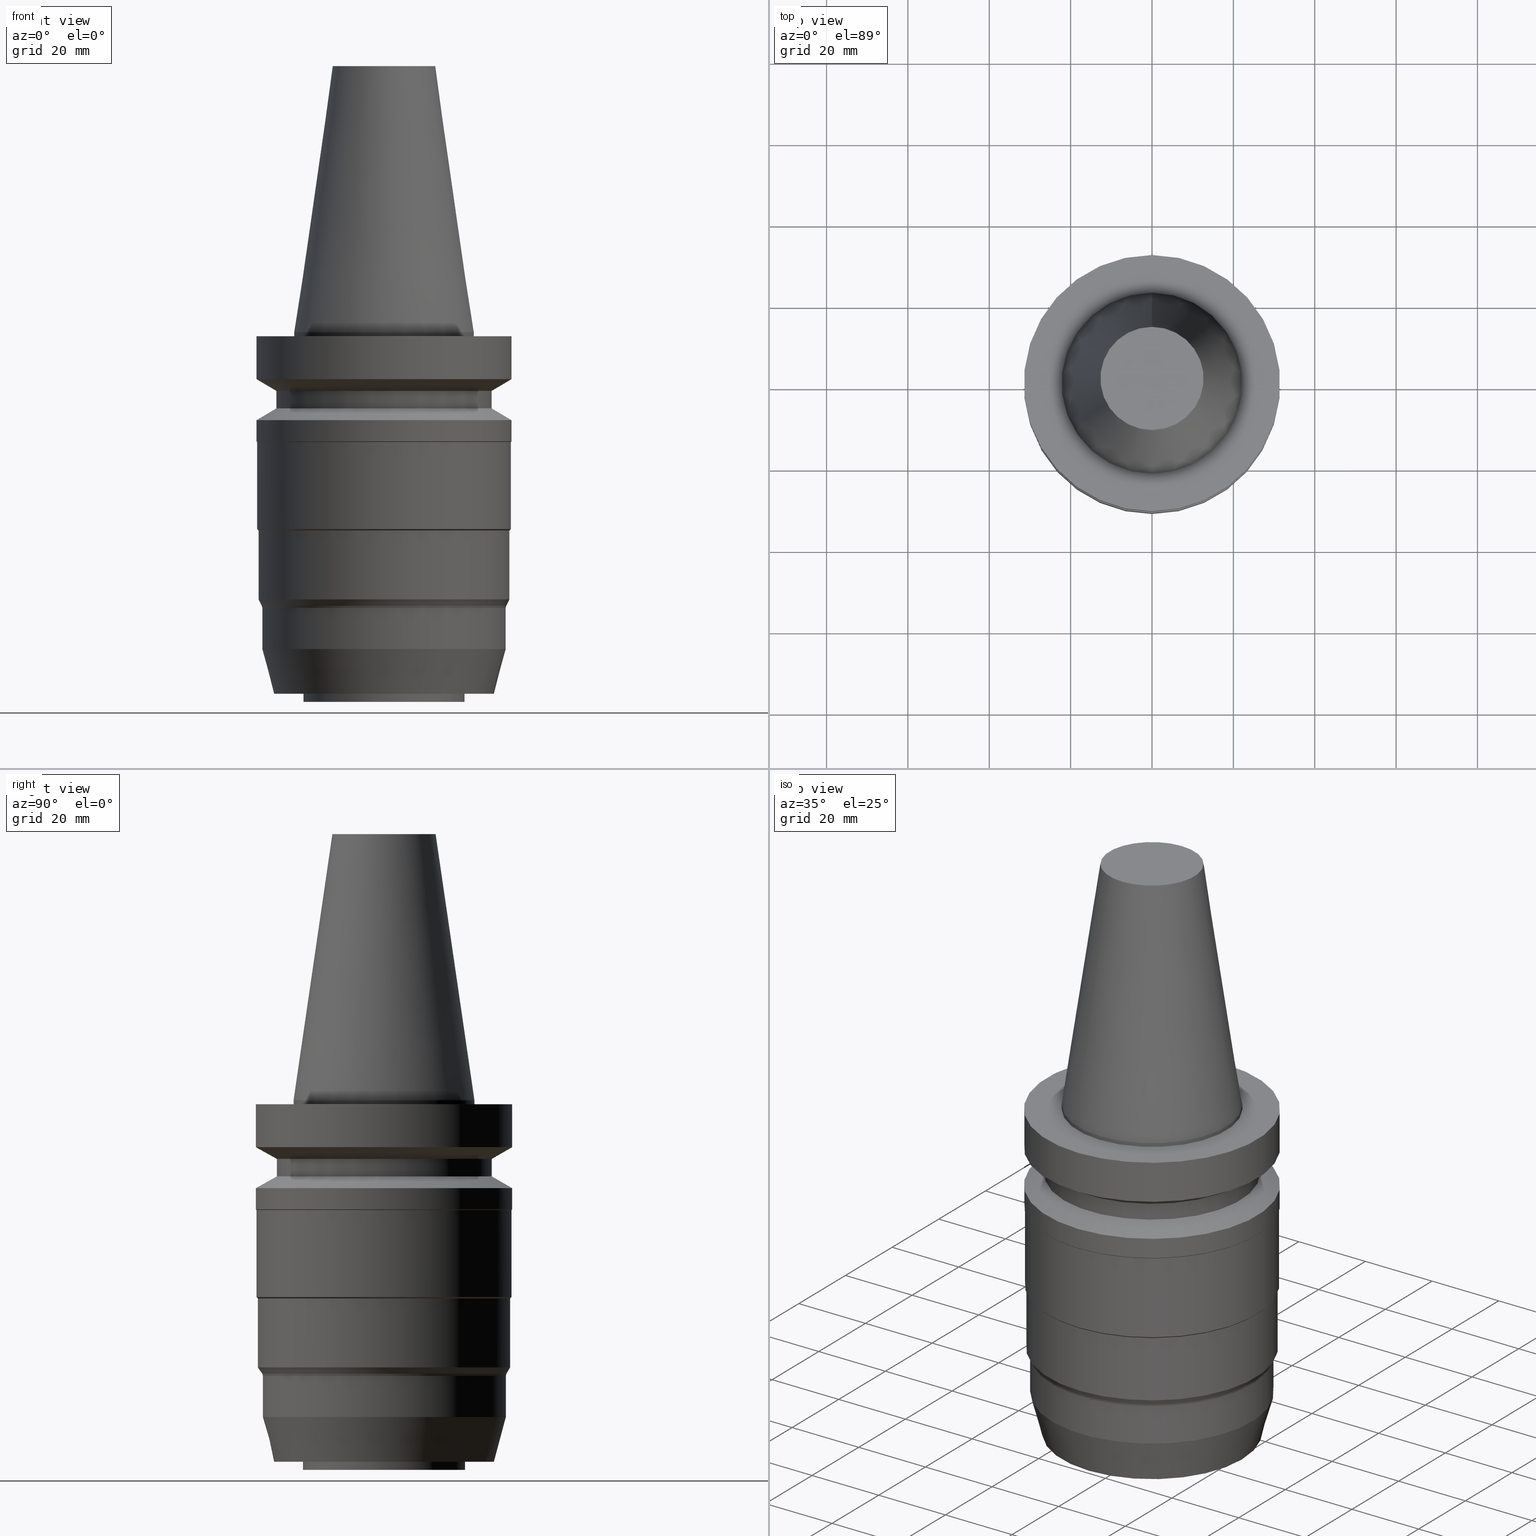
[diagram: canonical four-view strip — front | top / right | iso, engineering-drawing reading convention]
A machine part, canonical four-view strip (front | top / right | iso — engineering-drawing reading convention). The complete STEP part file that produces these views, byte-faithful:
ISO-10303-21;
HEADER;
FILE_DESCRIPTION((''),'1');
FILE_NAME('V:/90_\X2\53D65F9730C730FC30BF\X0\/00_\X2\6DE18DEF30C730FC30BF\X0\/ALL/BBT-BKUS\X2\FF76FF80FF9BFF78FF9E752852A05DE556F3\X0\201801/BBT40-MEGADS-A/BBT40-MEGA1.000DS-3.5A.stp','2018-02-07T02:59:03',(''),(''),'Spatial Interop R21 SP3','Kubotek KeyCreator 2011 V10.0.2 (22737)',' ');
FILE_SCHEMA(('automotive_design'));
ENDSEC;
DATA;
#1=MECHANICAL_DESIGN_GEOMETRIC_PRESENTATION_REPRESENTATION(' ',(#10,#11,#12,#13,#14,#15,#16,#17,#18,#19,#20,#21,#22,#23,#24,#25,#26,#27,#28,#29,#30,#31,#32,#33,#34,#35,#36,#37,#38,#39,#40,#41,#42,#43,#44,#45,#46,#47,#48,#49),#6);
#2=PRODUCT_DEFINITION_CONTEXT('',#50,'design');
#3=APPLICATION_PROTOCOL_DEFINITION('INTERNATIONAL STANDARD','automotive_design',1994,#50);
#4=PRODUCT_CATEGORY_RELATIONSHIP('NONE','NONE',#51,#52);
#5=SHAPE_DEFINITION_REPRESENTATION(#53,#54);
#6= (GEOMETRIC_REPRESENTATION_CONTEXT(3)GLOBAL_UNCERTAINTY_ASSIGNED_CONTEXT((#57))GLOBAL_UNIT_ASSIGNED_CONTEXT((#59,#60,#61))REPRESENTATION_CONTEXT('NONE','WORKSPACE'));
#10=STYLED_ITEM('',(#63),#64);
#11=STYLED_ITEM('',(#65,#66),#67);
#12=STYLED_ITEM('',(#68),#69);
#13=STYLED_ITEM('',(#70),#71);
#14=STYLED_ITEM('',(#72),#73);
#15=STYLED_ITEM('',(#74),#75);
#16=STYLED_ITEM('',(#76),#77);
#17=STYLED_ITEM('',(#78,#79),#80);
#18=STYLED_ITEM('',(#81),#82);
#19=STYLED_ITEM('',(#83),#84);
#20=STYLED_ITEM('',(#85),#86);
#21=STYLED_ITEM('',(#87,#88),#89);
#22=STYLED_ITEM('',(#90,#91),#92);
#23=STYLED_ITEM('',(#93,#94),#95);
#24=STYLED_ITEM('',(#96,#97),#98);
#25=STYLED_ITEM('',(#99,#100),#101);
#26=STYLED_ITEM('',(#102,#103),#104);
#27=STYLED_ITEM('',(#105,#106),#107);
#28=STYLED_ITEM('',(#108,#109),#110);
#29=STYLED_ITEM('',(#111,#112),#113);
#30=STYLED_ITEM('',(#114),#115);
#31=STYLED_ITEM('',(#116),#117);
#32=STYLED_ITEM('',(#118,#119),#120);
#33=STYLED_ITEM('',(#121),#122);
#34=STYLED_ITEM('',(#123,#124),#125);
#35=STYLED_ITEM('',(#126),#127);
#36=STYLED_ITEM('',(#128),#129);
#37=STYLED_ITEM('',(#130),#131);
#38=STYLED_ITEM('',(#132,#133),#134);
#39=STYLED_ITEM('',(#135,#136),#137);
#40=STYLED_ITEM('',(#138,#139),#140);
#41=STYLED_ITEM('',(#141,#142),#143);
#42=STYLED_ITEM('',(#144),#145);
#43=STYLED_ITEM('',(#146,#147),#148);
#44=STYLED_ITEM('',(#149),#150);
#45=STYLED_ITEM('',(#151,#152),#153);
#46=STYLED_ITEM('',(#154),#155);
#47=STYLED_ITEM('',(#156,#157),#158);
#48=STYLED_ITEM('',(#159,#160),#161);
#49=STYLED_ITEM('',(#162),#163);
#50=APPLICATION_CONTEXT(' ');
#51=PRODUCT_CATEGORY('part','NONE');
#52=PRODUCT_RELATED_PRODUCT_CATEGORY('detail',' ',(#164));
#53=PRODUCT_DEFINITION_SHAPE('NONE','NONE',#165);
#54=ADVANCED_BREP_SHAPE_REPRESENTATION('Unnamed[1]',(#134,#166),#6);
#57=UNCERTAINTY_MEASURE_WITH_UNIT(LENGTH_MEASURE(1.0E-006),#59,'','');
#59= (CONVERSION_BASED_UNIT('MILLIMETRE',#169)LENGTH_UNIT()NAMED_UNIT(#172));
#60= (NAMED_UNIT(#174)PLANE_ANGLE_UNIT()SI_UNIT($,.RADIAN.));
#61= (NAMED_UNIT(#174)SOLID_ANGLE_UNIT()SI_UNIT($,.STERADIAN.));
#63=PRESENTATION_STYLE_ASSIGNMENT((#180));
#64=EDGE_CURVE('Unnamed[1]',#181,#181,#182,.T.);
#65=PRESENTATION_STYLE_ASSIGNMENT((#183));
#66=PRESENTATION_STYLE_ASSIGNMENT((#184));
#67=ADVANCED_FACE('Unnamed[1]',(#185,#186),#187,.T.);
#68=PRESENTATION_STYLE_ASSIGNMENT((#188));
#69=EDGE_CURVE('Unnamed[1]',#189,#189,#190,.T.);
#70=PRESENTATION_STYLE_ASSIGNMENT((#191));
#71=EDGE_CURVE('Unnamed[1]',#192,#192,#193,.T.);
#72=PRESENTATION_STYLE_ASSIGNMENT((#194));
#73=EDGE_CURVE('Unnamed[1]',#195,#195,#196,.T.);
#74=PRESENTATION_STYLE_ASSIGNMENT((#197));
#75=EDGE_CURVE('Unnamed[1]',#198,#198,#199,.T.);
#76=PRESENTATION_STYLE_ASSIGNMENT((#200));
#77=EDGE_CURVE('Unnamed[1]',#201,#201,#202,.T.);
#78=PRESENTATION_STYLE_ASSIGNMENT((#203));
#79=PRESENTATION_STYLE_ASSIGNMENT((#204));
#80=ADVANCED_FACE('Unnamed[1]',(#205,#206),#207,.T.);
#81=PRESENTATION_STYLE_ASSIGNMENT((#208));
#82=EDGE_CURVE('Unnamed[1]',#209,#209,#210,.T.);
#83=PRESENTATION_STYLE_ASSIGNMENT((#211));
#84=EDGE_CURVE('Unnamed[1]',#212,#212,#213,.T.);
#85=PRESENTATION_STYLE_ASSIGNMENT((#214));
#86=EDGE_CURVE('Unnamed[1]',#215,#215,#216,.T.);
#87=PRESENTATION_STYLE_ASSIGNMENT((#217));
#88=PRESENTATION_STYLE_ASSIGNMENT((#218));
#89=ADVANCED_FACE('Unnamed[1]',(#219,#220),#221,.T.);
#90=PRESENTATION_STYLE_ASSIGNMENT((#222));
#91=PRESENTATION_STYLE_ASSIGNMENT((#223));
#92=ADVANCED_FACE('Unnamed[1]',(#224),#225,.T.);
#93=PRESENTATION_STYLE_ASSIGNMENT((#226));
#94=PRESENTATION_STYLE_ASSIGNMENT((#227));
#95=ADVANCED_FACE('Unnamed[1]',(#228,#229),#230,.T.);
#96=PRESENTATION_STYLE_ASSIGNMENT((#231));
#97=PRESENTATION_STYLE_ASSIGNMENT((#232));
#98=ADVANCED_FACE('Unnamed[1]',(#233,#234),#235,.T.);
#99=PRESENTATION_STYLE_ASSIGNMENT((#236));
#100=PRESENTATION_STYLE_ASSIGNMENT((#237));
#101=ADVANCED_FACE('Unnamed[1]',(#238,#239),#240,.T.);
#102=PRESENTATION_STYLE_ASSIGNMENT((#241));
#103=PRESENTATION_STYLE_ASSIGNMENT((#242));
#104=ADVANCED_FACE('Unnamed[1]',(#243,#244),#245,.T.);
#105=PRESENTATION_STYLE_ASSIGNMENT((#246));
#106=PRESENTATION_STYLE_ASSIGNMENT((#247));
#107=ADVANCED_FACE('Unnamed[1]',(#248,#249),#250,.T.);
#108=PRESENTATION_STYLE_ASSIGNMENT((#251));
#109=PRESENTATION_STYLE_ASSIGNMENT((#252));
#110=ADVANCED_FACE('Unnamed[1]',(#253,#254),#255,.T.);
#111=PRESENTATION_STYLE_ASSIGNMENT((#256));
#112=PRESENTATION_STYLE_ASSIGNMENT((#257));
#113=ADVANCED_FACE('Unnamed[1]',(#258),#259,.T.);
#114=PRESENTATION_STYLE_ASSIGNMENT((#260));
#115=EDGE_CURVE('Unnamed[1]',#261,#261,#262,.T.);
#116=PRESENTATION_STYLE_ASSIGNMENT((#263));
#117=EDGE_CURVE('Unnamed[1]',#264,#264,#265,.T.);
#118=PRESENTATION_STYLE_ASSIGNMENT((#266));
#119=PRESENTATION_STYLE_ASSIGNMENT((#267));
#120=ADVANCED_FACE('Unnamed[1]',(#268,#269),#270,.T.);
#121=PRESENTATION_STYLE_ASSIGNMENT((#271));
#122=EDGE_CURVE('Unnamed[1]',#272,#272,#273,.T.);
#123=PRESENTATION_STYLE_ASSIGNMENT((#274));
#124=PRESENTATION_STYLE_ASSIGNMENT((#275));
#125=ADVANCED_FACE('Unnamed[1]',(#276,#277),#278,.T.);
#126=PRESENTATION_STYLE_ASSIGNMENT((#279));
#127=EDGE_CURVE('Unnamed[1]',#280,#280,#281,.T.);
#128=PRESENTATION_STYLE_ASSIGNMENT((#282));
#129=EDGE_CURVE('Unnamed[1]',#283,#283,#284,.T.);
#130=PRESENTATION_STYLE_ASSIGNMENT((#285));
#131=EDGE_CURVE('Unnamed[1]',#286,#286,#287,.T.);
#132=PRESENTATION_STYLE_ASSIGNMENT((#288));
#133=PRESENTATION_STYLE_ASSIGNMENT((#289));
#134=MANIFOLD_SOLID_BREP('Unnamed[1]',#290);
#135=PRESENTATION_STYLE_ASSIGNMENT((#291));
#136=PRESENTATION_STYLE_ASSIGNMENT((#292));
#137=ADVANCED_FACE('Unnamed[1]',(#293,#294),#295,.T.);
#138=PRESENTATION_STYLE_ASSIGNMENT((#296));
#139=PRESENTATION_STYLE_ASSIGNMENT((#297));
#140=ADVANCED_FACE('Unnamed[1]',(#298,#299),#300,.T.);
#141=PRESENTATION_STYLE_ASSIGNMENT((#301));
#142=PRESENTATION_STYLE_ASSIGNMENT((#302));
#143=ADVANCED_FACE('Unnamed[1]',(#303,#304),#305,.T.);
#144=PRESENTATION_STYLE_ASSIGNMENT((#306));
#145=EDGE_CURVE('Unnamed[1]',#307,#307,#308,.T.);
#146=PRESENTATION_STYLE_ASSIGNMENT((#309));
#147=PRESENTATION_STYLE_ASSIGNMENT((#310));
#148=ADVANCED_FACE('Unnamed[1]',(#311,#312),#313,.T.);
#149=PRESENTATION_STYLE_ASSIGNMENT((#314));
#150=EDGE_CURVE('Unnamed[1]',#315,#315,#316,.T.);
#151=PRESENTATION_STYLE_ASSIGNMENT((#317));
#152=PRESENTATION_STYLE_ASSIGNMENT((#318));
#153=ADVANCED_FACE('Unnamed[1]',(#319,#320),#321,.T.);
#154=PRESENTATION_STYLE_ASSIGNMENT((#322));
#155=EDGE_CURVE('Unnamed[1]',#323,#323,#324,.T.);
#156=PRESENTATION_STYLE_ASSIGNMENT((#325));
#157=PRESENTATION_STYLE_ASSIGNMENT((#326));
#158=ADVANCED_FACE('Unnamed[1]',(#327,#328),#329,.T.);
#159=PRESENTATION_STYLE_ASSIGNMENT((#330));
#160=PRESENTATION_STYLE_ASSIGNMENT((#331));
#161=ADVANCED_FACE('Unnamed[1]',(#332,#333),#334,.T.);
#162=PRESENTATION_STYLE_ASSIGNMENT((#335));
#163=EDGE_CURVE('Unnamed[1]',#336,#336,#337,.T.);
#164=PRODUCT('Unnamed[1]','Unnamed[1]','PART-Unnamed[1]-DESC',(#338));
#165=PRODUCT_DEFINITION('NONE','NONE',#339,#2);
#166=AXIS2_PLACEMENT_3D('',#340,#341,#342);
#169=LENGTH_MEASURE_WITH_UNIT(LENGTH_MEASURE(1.0),#343);
#172=DIMENSIONAL_EXPONENTS(1.0,0.0,0.0,0.0,0.0,0.0,0.0);
#174=DIMENSIONAL_EXPONENTS(0.0,0.0,0.0,0.0,0.0,0.0,0.0);
#180=CURVE_STYLE('',#344,POSITIVE_LENGTH_MEASURE(1000.0),#345);
#181=VERTEX_POINT('',#346);
#182=CIRCLE('',#347,19.9200000000013);
#183=SURFACE_STYLE_USAGE(.BOTH.,#348);
#184=CURVE_STYLE('',#349,POSITIVE_LENGTH_MEASURE(1000.0),#350);
#185=FACE_BOUND('',#351,.T.);
#186=FACE_BOUND('',#352,.T.);
#187=CYLINDRICAL_SURFACE('',#353,29.9500000000001);
#188=CURVE_STYLE('',#354,POSITIVE_LENGTH_MEASURE(1000.0),#355);
#189=VERTEX_POINT('',#356);
#190=CIRCLE('',#357,12.6875000000001);
#191=CURVE_STYLE('',#358,POSITIVE_LENGTH_MEASURE(1000.0),#359);
#192=VERTEX_POINT('',#360);
#193=CIRCLE('',#361,19.9200000000008);
#194=CURVE_STYLE('',#362,POSITIVE_LENGTH_MEASURE(1000.0),#363);
#195=VERTEX_POINT('',#364);
#196=CIRCLE('',#365,26.5);
#197=CURVE_STYLE('',#366,POSITIVE_LENGTH_MEASURE(1000.0),#367);
#198=VERTEX_POINT('',#368);
#199=CIRCLE('',#369,31.3500000000002);
#200=CURVE_STYLE('',#370,POSITIVE_LENGTH_MEASURE(1000.0),#371);
#201=VERTEX_POINT('',#372);
#202=CIRCLE('',#373,29.9499999999999);
#203=SURFACE_STYLE_USAGE(.BOTH.,#374);
#204=CURVE_STYLE('',#375,POSITIVE_LENGTH_MEASURE(1000.0),#376);
#205=FACE_BOUND('',#377,.T.);
#206=FACE_BOUND('',#378,.T.);
#207=CONICAL_SURFACE('',#379,28.9999999999999,1.04719755119657);
#208=CURVE_STYLE('',#380,POSITIVE_LENGTH_MEASURE(1000.0),#381);
#209=VERTEX_POINT('',#382);
#210=CIRCLE('',#383,31.4999999999996);
#211=CURVE_STYLE('',#384,POSITIVE_LENGTH_MEASURE(1000.0),#385);
#212=VERTEX_POINT('',#386);
#213=CIRCLE('',#387,22.225);
#214=CURVE_STYLE('',#388,POSITIVE_LENGTH_MEASURE(1000.0),#389);
#215=VERTEX_POINT('',#390);
#216=CIRCLE('',#391,31.5000000000005);
#217=SURFACE_STYLE_USAGE(.BOTH.,#392);
#218=CURVE_STYLE('',#393,POSITIVE_LENGTH_MEASURE(1000.0),#394);
#219=FACE_BOUND('',#395,.T.);
#220=FACE_BOUND('',#396,.T.);
#221=CYLINDRICAL_SURFACE('',#397,31.0);
#222=SURFACE_STYLE_USAGE(.BOTH.,#398);
#223=CURVE_STYLE('',#399,POSITIVE_LENGTH_MEASURE(1000.0),#400);
#224=FACE_OUTER_BOUND('',#401,.T.);
#225=PLANE('',#402);
#226=SURFACE_STYLE_USAGE(.BOTH.,#403);
#227=CURVE_STYLE('',#404,POSITIVE_LENGTH_MEASURE(1000.0),#405);
#228=FACE_BOUND('',#406,.T.);
#229=FACE_BOUND('',#407,.T.);
#230=CONICAL_SURFACE('',#408,31.1750000000001,0.785398163406213);
#231=SURFACE_STYLE_USAGE(.BOTH.,#409);
#232=CURVE_STYLE('',#410,POSITIVE_LENGTH_MEASURE(1000.0),#411);
#233=FACE_BOUND('',#412,.T.);
#234=FACE_BOUND('',#413,.T.);
#235=CONICAL_SURFACE('',#414,31.425,0.785398163401581);
#236=SURFACE_STYLE_USAGE(.BOTH.,#415);
#237=CURVE_STYLE('',#416,POSITIVE_LENGTH_MEASURE(1000.0),#417);
#238=FACE_BOUND('',#418,.T.);
#239=FACE_BOUND('',#419,.T.);
#240=CONICAL_SURFACE('',#420,30.0169872981074,0.261799387798462);
#241=SURFACE_STYLE_USAGE(.BOTH.,#421);
#242=CURVE_STYLE('',#422,POSITIVE_LENGTH_MEASURE(1000.0),#423);
#243=FACE_BOUND('',#424,.T.);
#244=FACE_BOUND('',#425,.T.);
#245=CYLINDRICAL_SURFACE('',#426,22.225);
#246=SURFACE_STYLE_USAGE(.BOTH.,#427);
#247=CURVE_STYLE('',#428,POSITIVE_LENGTH_MEASURE(1000.0),#429);
#248=FACE_BOUND('',#430,.T.);
#249=FACE_BOUND('',#431,.T.);
#250=CYLINDRICAL_SURFACE('',#432,26.4999999999997);
#251=SURFACE_STYLE_USAGE(.BOTH.,#433);
#252=CURVE_STYLE('',#434,POSITIVE_LENGTH_MEASURE(1000.0),#435);
#253=FACE_BOUND('',#436,.T.);
#254=FACE_BOUND('',#437,.T.);
#255=CYLINDRICAL_SURFACE('',#438,31.5000000000006);
#256=SURFACE_STYLE_USAGE(.BOTH.,#439);
#257=CURVE_STYLE('',#440,POSITIVE_LENGTH_MEASURE(1000.0),#441);
#258=FACE_OUTER_BOUND('',#442,.T.);
#259=PLANE('',#443);
#260=CURVE_STYLE('',#444,POSITIVE_LENGTH_MEASURE(1000.0),#445);
#261=VERTEX_POINT('',#446);
#262=CIRCLE('',#447,31.5000000000003);
#263=CURVE_STYLE('',#448,POSITIVE_LENGTH_MEASURE(1000.0),#449);
#264=VERTEX_POINT('',#450);
#265=CIRCLE('',#451,26.4999999999994);
#266=SURFACE_STYLE_USAGE(.BOTH.,#452);
#267=CURVE_STYLE('',#453,POSITIVE_LENGTH_MEASURE(1000.0),#454);
#268=FACE_BOUND('',#455,.T.);
#269=FACE_BOUND('',#456,.T.);
#270=CONICAL_SURFACE('',#457,30.5419872981074,0.523598775596923);
#271=CURVE_STYLE('',#458,POSITIVE_LENGTH_MEASURE(1000.0),#459);
#272=VERTEX_POINT('',#460);
#273=CIRCLE('',#461,30.0839745962148);
#274=SURFACE_STYLE_USAGE(.BOTH.,#462);
#275=CURVE_STYLE('',#463,POSITIVE_LENGTH_MEASURE(1000.0),#464);
#276=FACE_BOUND('',#465,.T.);
#277=FACE_BOUND('',#466,.T.);
#278=CYLINDRICAL_SURFACE('',#467,19.9200000000011);
#279=CURVE_STYLE('',#468,POSITIVE_LENGTH_MEASURE(1000.0),#469);
#280=VERTEX_POINT('',#470);
#281=CIRCLE('',#471,31.5000000000008);
#282=CURVE_STYLE('',#472,POSITIVE_LENGTH_MEASURE(1000.0),#473);
#283=VERTEX_POINT('',#474);
#284=CIRCLE('',#475,29.9500000000003);
#285=CURVE_STYLE('',#476,POSITIVE_LENGTH_MEASURE(1000.0),#477);
#286=VERTEX_POINT('',#478);
#287=CIRCLE('',#479,26.9999999999999);
#288=SURFACE_STYLE_USAGE(.BOTH.,#480);
#289=CURVE_STYLE('',#481,POSITIVE_LENGTH_MEASURE(1000.0),#482);
#290=CLOSED_SHELL('',(#92,#140,#104,#161,#153,#80,#107,#148,#110,#98,#143,#95,#89,#120,#101,#67,#137,#158,#125,#113));
#291=SURFACE_STYLE_USAGE(.BOTH.,#483);
#292=CURVE_STYLE('',#484,POSITIVE_LENGTH_MEASURE(1000.0),#485);
#293=FACE_BOUND('',#486,.T.);
#294=FACE_BOUND('',#487,.T.);
#295=CONICAL_SURFACE('',#488,28.4750000000001,0.261799387799165);
#296=SURFACE_STYLE_USAGE(.BOTH.,#489);
#297=CURVE_STYLE('',#490,POSITIVE_LENGTH_MEASURE(1000.0),#491);
#298=FACE_BOUND('',#492,.T.);
#299=FACE_BOUND('',#493,.T.);
#300=CONICAL_SURFACE('',#494,17.4562500000001,0.144812498238936);
#301=SURFACE_STYLE_USAGE(.BOTH.,#495);
#302=CURVE_STYLE('',#496,POSITIVE_LENGTH_MEASURE(1000.0),#497);
#303=FACE_BOUND('',#498,.T.);
#304=FACE_BOUND('',#499,.T.);
#305=CYLINDRICAL_SURFACE('',#500,31.3499999999998);
#306=CURVE_STYLE('',#501,POSITIVE_LENGTH_MEASURE(1000.0),#502);
#307=VERTEX_POINT('',#503);
#308=CIRCLE('',#504,31.0);
#309=SURFACE_STYLE_USAGE(.BOTH.,#505);
#310=CURVE_STYLE('',#506,POSITIVE_LENGTH_MEASURE(1000.0),#507);
#311=FACE_BOUND('',#508,.T.);
#312=FACE_BOUND('',#509,.T.);
#313=CONICAL_SURFACE('',#510,29.0000000000004,1.04719755119651);
#314=CURVE_STYLE('',#511,POSITIVE_LENGTH_MEASURE(1000.0),#512);
#315=VERTEX_POINT('',#513);
#316=CIRCLE('',#514,22.225);
#317=SURFACE_STYLE_USAGE(.BOTH.,#515);
#318=CURVE_STYLE('',#516,POSITIVE_LENGTH_MEASURE(1000.0),#517);
#319=FACE_BOUND('',#518,.T.);
#320=FACE_BOUND('',#519,.T.);
#321=CYLINDRICAL_SURFACE('',#520,31.5);
#322=CURVE_STYLE('',#521,POSITIVE_LENGTH_MEASURE(1000.0),#522);
#323=VERTEX_POINT('',#523);
#324=CIRCLE('',#524,31.0);
#325=SURFACE_STYLE_USAGE(.BOTH.,#525);
#326=CURVE_STYLE('',#526,POSITIVE_LENGTH_MEASURE(1000.0),#527);
#327=FACE_BOUND('',#528,.T.);
#328=FACE_OUTER_BOUND('',#529,.T.);
#329=PLANE('',#530);
#330=SURFACE_STYLE_USAGE(.BOTH.,#531);
#331=CURVE_STYLE('',#532,POSITIVE_LENGTH_MEASURE(1000.0),#533);
#332=FACE_OUTER_BOUND('',#534,.T.);
#333=FACE_BOUND('',#535,.T.);
#334=PLANE('',#536);
#335=CURVE_STYLE('',#537,POSITIVE_LENGTH_MEASURE(1000.0),#538);
#336=VERTEX_POINT('',#539);
#337=CIRCLE('',#540,31.3499999999995);
#338=PRODUCT_CONTEXT('',#50,'mechanical');
#339=PRODUCT_DEFINITION_FORMATION_WITH_SPECIFIED_SOURCE(' ','NONE',#164,.NOT_KNOWN.);
#340=CARTESIAN_POINT('',(0.0,0.0,0.0));
#341=DIRECTION('',(0.0,0.0,1.0));
#342=DIRECTION('',(1.0,0.0,0.0));
#343= (NAMED_UNIT(#172)LENGTH_UNIT()SI_UNIT(.MILLI.,.METRE.));
#344=DRAUGHTING_PRE_DEFINED_CURVE_FONT('continuous');
#345=COLOUR_RGB('',0.0,1.0,0.0);
#346=CARTESIAN_POINT('',(5.44355502220996E-015,19.9200000000014,-88.8999999999995));
#347=AXIS2_PLACEMENT_3D('',#542,#543,#544);
#348=SURFACE_SIDE_STYLE('',(#545));
#349=DRAUGHTING_PRE_DEFINED_CURVE_FONT('continuous');
#350=COLOUR_RGB('',0.0,1.0,0.0);
#351=EDGE_LOOP('',(#546));
#352=EDGE_LOOP('',(#547));
#353=AXIS2_PLACEMENT_3D('',#548,#549,#550);
#354=DRAUGHTING_PRE_DEFINED_CURVE_FONT('continuous');
#355=COLOUR_RGB('',0.0,1.0,0.0);
#356=CARTESIAN_POINT('',(-4.00459503321185E-015,12.6875000000002,65.4000000000001));
#357=AXIS2_PLACEMENT_3D('',#551,#552,#553);
#358=DRAUGHTING_PRE_DEFINED_CURVE_FONT('continuous');
#359=COLOUR_RGB('',0.0,1.0,0.0);
#360=CARTESIAN_POINT('',(5.56601970212473E-015,19.9200000000008,-90.9000000000002));
#361=AXIS2_PLACEMENT_3D('',#554,#555,#556);
#362=DRAUGHTING_PRE_DEFINED_CURVE_FONT('continuous');
#363=COLOUR_RGB('',0.0,1.0,0.0);
#364=CARTESIAN_POINT('',(1.1479681728942E-015,26.5,-18.7477430013855));
#365=AXIS2_PLACEMENT_3D('',#557,#558,#559);
#366=DRAUGHTING_PRE_DEFINED_CURVE_FONT('continuous');
#367=COLOUR_RGB('',0.0,1.0,0.0);
#368=CARTESIAN_POINT('',(2.96364525393658E-015,31.3500000000002,-48.3999999999998));
#369=AXIS2_PLACEMENT_3D('',#560,#561,#562);
#370=DRAUGHTING_PRE_DEFINED_CURVE_FONT('continuous');
#371=COLOUR_RGB('',0.0,1.0,0.0);
#372=CARTESIAN_POINT('',(4.14959010316459E-015,29.9499999999999,-67.7679491924316));
#373=AXIS2_PLACEMENT_3D('',#563,#564,#565);
#374=SURFACE_SIDE_STYLE('',(#566));
#375=DRAUGHTING_PRE_DEFINED_CURVE_FONT('continuous');
#376=COLOUR_RGB('',0.0,1.0,0.0);
#377=EDGE_LOOP('',(#567));
#378=EDGE_LOOP('',(#568));
#379=AXIS2_PLACEMENT_3D('',#569,#570,#571);
#380=DRAUGHTING_PRE_DEFINED_CURVE_FONT('continuous');
#381=COLOUR_RGB('',0.0,1.0,0.0);
#382=CARTESIAN_POINT('',(6.12323399573568E-017,31.4999999999997,-0.999999999999825));
#383=AXIS2_PLACEMENT_3D('',#572,#573,#574);
#384=DRAUGHTING_PRE_DEFINED_CURVE_FONT('continuous');
#385=COLOUR_RGB('',0.0,1.0,0.0);
#386=CARTESIAN_POINT('',(1.71319921032766E-029,22.2250000000001,-2.8153873565375E-013));
#387=AXIS2_PLACEMENT_3D('',#575,#576,#577);
#388=DRAUGHTING_PRE_DEFINED_CURVE_FONT('continuous');
#389=COLOUR_RGB('',0.0,1.0,0.0);
#390=CARTESIAN_POINT('',(1.64408832785559E-015,31.5000000000005,-26.8500000000044));
#391=AXIS2_PLACEMENT_3D('',#578,#579,#580);
#392=SURFACE_SIDE_STYLE('',(#581));
#393=DRAUGHTING_PRE_DEFINED_CURVE_FONT('continuous');
#394=COLOUR_RGB('',0.0,1.0,0.0);
#395=EDGE_LOOP('',(#582));
#396=EDGE_LOOP('',(#583));
#397=AXIS2_PLACEMENT_3D('',#584,#585,#586);
#398=SURFACE_SIDE_STYLE('',(#587));
#399=DRAUGHTING_PRE_DEFINED_CURVE_FONT('continuous');
#400=COLOUR_RGB('',0.0,1.0,0.0);
#401=EDGE_LOOP('',(#588));
#402=AXIS2_PLACEMENT_3D('',#589,#590,#591);
#403=SURFACE_SIDE_STYLE('',(#592));
#404=DRAUGHTING_PRE_DEFINED_CURVE_FONT('continuous');
#405=COLOUR_RGB('',0.0,1.0,0.0);
#406=EDGE_LOOP('',(#593));
#407=EDGE_LOOP('',(#594));
#408=AXIS2_PLACEMENT_3D('',#595,#596,#597);
#409=SURFACE_SIDE_STYLE('',(#598));
#410=DRAUGHTING_PRE_DEFINED_CURVE_FONT('continuous');
#411=COLOUR_RGB('',0.0,1.0,0.0);
#412=EDGE_LOOP('',(#599));
#413=EDGE_LOOP('',(#600));
#414=AXIS2_PLACEMENT_3D('',#601,#602,#603);
#415=SURFACE_SIDE_STYLE('',(#604));
#416=DRAUGHTING_PRE_DEFINED_CURVE_FONT('continuous');
#417=COLOUR_RGB('',0.0,1.0,0.0);
#418=EDGE_LOOP('',(#605));
#419=EDGE_LOOP('',(#606));
#420=AXIS2_PLACEMENT_3D('',#607,#608,#609);
#421=SURFACE_SIDE_STYLE('',(#610));
#422=DRAUGHTING_PRE_DEFINED_CURVE_FONT('continuous');
#423=COLOUR_RGB('',0.0,1.0,0.0);
#424=EDGE_LOOP('',(#611));
#425=EDGE_LOOP('',(#612));
#426=AXIS2_PLACEMENT_3D('',#613,#614,#615);
#427=SURFACE_SIDE_STYLE('',(#616));
#428=DRAUGHTING_PRE_DEFINED_CURVE_FONT('continuous');
#429=COLOUR_RGB('',0.0,1.0,0.0);
#430=EDGE_LOOP('',(#617));
#431=EDGE_LOOP('',(#618));
#432=AXIS2_PLACEMENT_3D('',#619,#620,#621);
#433=SURFACE_SIDE_STYLE('',(#622));
#434=DRAUGHTING_PRE_DEFINED_CURVE_FONT('continuous');
#435=COLOUR_RGB('',0.0,1.0,0.0);
#436=EDGE_LOOP('',(#623));
#437=EDGE_LOOP('',(#624));
#438=AXIS2_PLACEMENT_3D('',#625,#626,#627);
#439=SURFACE_SIDE_STYLE('',(#628));
#440=DRAUGHTING_PRE_DEFINED_CURVE_FONT('continuous');
#441=COLOUR_RGB('',0.0,1.0,0.0);
#442=EDGE_LOOP('',(#629));
#443=AXIS2_PLACEMENT_3D('',#630,#631,#632);
#444=DRAUGHTING_PRE_DEFINED_CURVE_FONT('continuous');
#445=COLOUR_RGB('',0.0,1.0,0.0);
#446=CARTESIAN_POINT('',(7.08182973902924E-016,31.5000000000004,-11.5655056526664));
#447=AXIS2_PLACEMENT_3D('',#633,#634,#635);
#448=DRAUGHTING_PRE_DEFINED_CURVE_FONT('continuous');
#449=COLOUR_RGB('',0.0,1.0,0.0);
#450=CARTESIAN_POINT('',(8.8494551369045E-016,26.4999999999995,-14.4522569986152));
#451=AXIS2_PLACEMENT_3D('',#636,#637,#638);
#452=SURFACE_SIDE_STYLE('',(#639));
#453=DRAUGHTING_PRE_DEFINED_CURVE_FONT('continuous');
#454=COLOUR_RGB('',0.0,1.0,0.0);
#455=EDGE_LOOP('',(#640));
#456=EDGE_LOOP('',(#641));
#457=AXIS2_PLACEMENT_3D('',#642,#643,#644);
#458=DRAUGHTING_PRE_DEFINED_CURVE_FONT('continuous');
#459=COLOUR_RGB('',0.0,1.0,0.0);
#460=CARTESIAN_POINT('',(4.11897393318598E-015,30.0839745962148,-67.2679491924328));
#461=AXIS2_PLACEMENT_3D('',#645,#646,#647);
#462=SURFACE_SIDE_STYLE('',(#648));
#463=DRAUGHTING_PRE_DEFINED_CURVE_FONT('continuous');
#464=COLOUR_RGB('',0.0,1.0,0.0);
#465=EDGE_LOOP('',(#649));
#466=EDGE_LOOP('',(#650));
#467=AXIS2_PLACEMENT_3D('',#651,#652,#653);
#468=DRAUGHTING_PRE_DEFINED_CURVE_FONT('continuous');
#469=COLOUR_RGB('',0.0,1.0,0.0);
#470=CARTESIAN_POINT('',(1.32473071268175E-015,31.5000000000008,-21.6344943473347));
#471=AXIS2_PLACEMENT_3D('',#654,#655,#656);
#472=DRAUGHTING_PRE_DEFINED_CURVE_FONT('continuous');
#473=COLOUR_RGB('',0.0,1.0,0.0);
#474=CARTESIAN_POINT('',(4.7694145210376E-015,29.9500000000003,-77.8904501176706));
#475=AXIS2_PLACEMENT_3D('',#657,#658,#659);
#476=DRAUGHTING_PRE_DEFINED_CURVE_FONT('continuous');
#477=COLOUR_RGB('',0.0,1.0,0.0);
#478=CARTESIAN_POINT('',(5.44355502220996E-015,26.9999999999999,-88.8999999999995));
#479=AXIS2_PLACEMENT_3D('',#660,#661,#662);
#480=SURFACE_SIDE_STYLE('',(#663));
#481=DRAUGHTING_PRE_DEFINED_CURVE_FONT('continuous');
#482=COLOUR_RGB('',0.0,1.0,0.0);
#483=SURFACE_SIDE_STYLE('',(#664));
#484=DRAUGHTING_PRE_DEFINED_CURVE_FONT('continuous');
#485=COLOUR_RGB('',0.0,1.0,0.0);
#486=EDGE_LOOP('',(#665));
#487=EDGE_LOOP('',(#666));
#488=AXIS2_PLACEMENT_3D('',#667,#668,#669);
#489=SURFACE_SIDE_STYLE('',(#670));
#490=DRAUGHTING_PRE_DEFINED_CURVE_FONT('continuous');
#491=COLOUR_RGB('',0.0,1.0,0.0);
#492=EDGE_LOOP('',(#671));
#493=EDGE_LOOP('',(#672));
#494=AXIS2_PLACEMENT_3D('',#673,#674,#675);
#495=SURFACE_SIDE_STYLE('',(#676));
#496=DRAUGHTING_PRE_DEFINED_CURVE_FONT('continuous');
#497=COLOUR_RGB('',0.0,1.0,0.0);
#498=EDGE_LOOP('',(#677));
#499=EDGE_LOOP('',(#678));
#500=AXIS2_PLACEMENT_3D('',#679,#680,#681);
#501=DRAUGHTING_PRE_DEFINED_CURVE_FONT('continuous');
#502=COLOUR_RGB('',0.0,1.0,0.0);
#503=CARTESIAN_POINT('',(2.98507657292129E-015,31.0000000000001,-48.7499999999938));
#504=AXIS2_PLACEMENT_3D('',#682,#683,#684);
#505=SURFACE_SIDE_STYLE('',(#685));
#506=DRAUGHTING_PRE_DEFINED_CURVE_FONT('continuous');
#507=COLOUR_RGB('',0.0,1.0,0.0);
#508=EDGE_LOOP('',(#686));
#509=EDGE_LOOP('',(#687));
#510=AXIS2_PLACEMENT_3D('',#688,#689,#690);
#511=DRAUGHTING_PRE_DEFINED_CURVE_FONT('continuous');
#512=COLOUR_RGB('',0.0,1.0,0.0);
#513=CARTESIAN_POINT('',(6.12323399573622E-017,22.2250000000001,-0.999999999999912));
#514=AXIS2_PLACEMENT_3D('',#691,#692,#693);
#515=SURFACE_SIDE_STYLE('',(#694));
#516=DRAUGHTING_PRE_DEFINED_CURVE_FONT('continuous');
#517=COLOUR_RGB('',0.0,1.0,0.0);
#518=EDGE_LOOP('',(#695));
#519=EDGE_LOOP('',(#696));
#520=AXIS2_PLACEMENT_3D('',#697,#698,#699);
#521=DRAUGHTING_PRE_DEFINED_CURVE_FONT('continuous');
#522=COLOUR_RGB('',0.0,1.0,0.0);
#523=CARTESIAN_POINT('',(4.02182254705591E-015,31.0,-65.681346652048));
#524=AXIS2_PLACEMENT_3D('',#700,#701,#702);
#525=SURFACE_SIDE_STYLE('',(#703));
#526=DRAUGHTING_PRE_DEFINED_CURVE_FONT('continuous');
#527=COLOUR_RGB('',0.0,1.0,0.0);
#528=EDGE_LOOP('',(#704));
#529=EDGE_LOOP('',(#705));
#530=AXIS2_PLACEMENT_3D('',#706,#707,#708);
#531=SURFACE_SIDE_STYLE('',(#709));
#532=DRAUGHTING_PRE_DEFINED_CURVE_FONT('continuous');
#533=COLOUR_RGB('',0.0,1.0,0.0);
#534=EDGE_LOOP('',(#710));
#535=EDGE_LOOP('',(#711));
#536=AXIS2_PLACEMENT_3D('',#712,#713,#714);
#537=DRAUGHTING_PRE_DEFINED_CURVE_FONT('continuous');
#538=COLOUR_RGB('',0.0,1.0,0.0);
#539=CARTESIAN_POINT('',(1.65327317884918E-015,31.3499999999995,-27.0000000000042));
#540=AXIS2_PLACEMENT_3D('',#715,#716,#717);
#542=CARTESIAN_POINT('',(5.44355502220996E-015,1.33762043154158E-014,-88.8999999999995));
#543=DIRECTION('',(6.12323399573677E-017,-4.10767166376342E-016,-1.0));
#544=DIRECTION('',(2.03250820441117E-032,1.0,-4.10767166376342E-016));
#545=SURFACE_STYLE_FILL_AREA(#718);
#546=ORIENTED_EDGE('',*,*,#129,.F.);
#547=ORIENTED_EDGE('',*,*,#77,.T.);
#548=CARTESIAN_POINT('',(4.45950231210109E-015,1.99775614345102E-014,-72.8291996550511));
#549=DIRECTION('',(6.12323399573676E-017,-4.10767166376342E-016,-1.0));
#550=DIRECTION('',(2.03250820441117E-032,1.0,-4.10767166376342E-016));
#551=CARTESIAN_POINT('',(-4.00459503321185E-015,7.67575780872852E-014,65.4000000000001));
#552=DIRECTION('',(6.12323399573677E-017,-4.10767166376342E-016,-1.0));
#553=DIRECTION('',(2.03250820441117E-032,1.0,-4.10767166376342E-016));
#554=CARTESIAN_POINT('',(5.56601970212473E-015,1.25546699826628E-014,-90.9000000000002));
#555=DIRECTION('',(6.12323399573677E-017,-4.10767166376342E-016,-1.0));
#556=DIRECTION('',(2.03250820441117E-032,1.0,-4.10767166376342E-016));
#557=CARTESIAN_POINT('',(1.1479681728942E-015,4.21924481376414E-014,-18.7477430013855));
#558=DIRECTION('',(6.12323399573677E-017,-4.10767166376342E-016,-1.0));
#559=DIRECTION('',(2.03250820441117E-032,1.0,-4.10767166376342E-016));
#560=CARTESIAN_POINT('',(2.96364525393658E-015,3.00122745536575E-014,-48.3999999999998));
#561=DIRECTION('',(6.12323399573677E-017,-4.10767166376342E-016,-1.0));
#562=DIRECTION('',(2.03250820441117E-032,1.0,-4.10767166376342E-016));
#563=CARTESIAN_POINT('',(4.14959010316459E-015,2.20565569453614E-014,-67.7679491924316));
#564=DIRECTION('',(6.12323399573677E-017,-4.10767166376342E-016,-1.0));
#565=DIRECTION('',(2.03250820441117E-032,1.0,-4.10767166376342E-016));
#566=SURFACE_STYLE_FILL_AREA(#719);
#567=ORIENTED_EDGE('',*,*,#117,.F.);
#568=ORIENTED_EDGE('',*,*,#115,.T.);
#569=CARTESIAN_POINT('',(7.96564243796687E-016,4.45497840864128E-014,-13.0088813256408));
#570=DIRECTION('',(-6.12323399573677E-017,4.10767166376342E-016,1.0));
#571=DIRECTION('',(2.03250820441117E-032,1.0,-4.10767166376342E-016));
#572=CARTESIAN_POINT('',(6.12323399573563E-017,4.94826382398961E-014,-0.999999999999815));
#573=DIRECTION('',(6.12323399573677E-017,-4.10767166376342E-016,-1.0));
#574=DIRECTION('',(2.03250820441117E-032,1.0,-4.10767166376342E-016));
#575=CARTESIAN_POINT('',(1.65331138531142E-029,4.98934054062723E-014,-2.70006239588838E-013));
#576=DIRECTION('',(6.12323399573677E-017,-4.10767166376342E-016,-1.0));
#577=DIRECTION('',(2.03250820441117E-032,1.0,-4.10767166376342E-016));
#578=CARTESIAN_POINT('',(1.64408832785559E-015,3.88643069890658E-014,-26.8500000000044));
#579=DIRECTION('',(6.12323399573677E-017,-4.10767166376342E-016,-1.0));
#580=DIRECTION('',(2.03250820441117E-032,1.0,-4.10767166376342E-016));
#581=SURFACE_STYLE_FILL_AREA(#720);
#582=ORIENTED_EDGE('',*,*,#155,.F.);
#583=ORIENTED_EDGE('',*,*,#145,.T.);
#584=CARTESIAN_POINT('',(3.5034495599886E-015,2.63910854018283E-014,-57.2156733260209));
#585=DIRECTION('',(6.12323399573677E-017,-4.10767166376342E-016,-1.0));
#586=DIRECTION('',(2.03250820441117E-032,1.0,-4.10767166376342E-016));
#587=SURFACE_STYLE_FILL_AREA(#721);
#588=ORIENTED_EDGE('',*,*,#69,.F.);
#589=CARTESIAN_POINT('',(-4.00459503321185E-015,6.34375000000014,65.4000000000001));
#590=DIRECTION('',(-6.12323399573677E-017,9.97602686800683E-016,1.0));
#591=DIRECTION('',(-5.62583941297938E-032,-1.0,9.97602686800683E-016));
#592=SURFACE_STYLE_FILL_AREA(#722);
#593=ORIENTED_EDGE('',*,*,#145,.F.);
#594=ORIENTED_EDGE('',*,*,#75,.T.);
#595=CARTESIAN_POINT('',(2.97436091342894E-015,2.99403902995429E-014,-48.5749999999968));
#596=DIRECTION('',(-6.12323399573677E-017,4.10767166376342E-016,1.0));
#597=DIRECTION('',(2.03250820441117E-032,1.0,-4.10767166376342E-016));
#598=SURFACE_STYLE_FILL_AREA(#723);
#599=ORIENTED_EDGE('',*,*,#163,.F.);
#600=ORIENTED_EDGE('',*,*,#86,.T.);
#601=CARTESIAN_POINT('',(1.64868075335239E-015,3.88334994515876E-014,-26.9250000000043));
#602=DIRECTION('',(-6.12323399573677E-017,4.10767166376342E-016,1.0));
#603=DIRECTION('',(2.03250820441117E-032,1.0,-4.10767166376342E-016));
#604=SURFACE_STYLE_FILL_AREA(#724);
#605=ORIENTED_EDGE('',*,*,#77,.F.);
#606=ORIENTED_EDGE('',*,*,#122,.T.);
#607=CARTESIAN_POINT('',(4.13428201817528E-015,2.21592487369552E-014,-67.5179491924322));
#608=DIRECTION('',(-6.12323399573677E-017,4.10767166376342E-016,1.0));
#609=DIRECTION('',(2.03250820441117E-032,1.0,-4.10767166376342E-016));
#610=SURFACE_STYLE_FILL_AREA(#725);
#611=ORIENTED_EDGE('',*,*,#150,.F.);
#612=ORIENTED_EDGE('',*,*,#84,.T.);
#613=CARTESIAN_POINT('',(3.06161699786891E-017,4.96880218230842E-014,-0.500000000000085));
#614=DIRECTION('',(6.12323399573677E-017,-4.10767166376342E-016,-1.0));
#615=DIRECTION('',(2.03250820441117E-032,1.0,-4.10767166376342E-016));
#616=SURFACE_STYLE_FILL_AREA(#726);
#617=ORIENTED_EDGE('',*,*,#73,.F.);
#618=ORIENTED_EDGE('',*,*,#117,.T.);
#619=CARTESIAN_POINT('',(1.01645684329232E-015,4.3074670444425E-014,-16.6000000000003));
#620=DIRECTION('',(6.12323399573677E-017,-4.10767166376342E-016,-1.0));
#621=DIRECTION('',(2.03250820441117E-032,1.0,-4.10767166376342E-016));
#622=SURFACE_STYLE_FILL_AREA(#727);
#623=ORIENTED_EDGE('',*,*,#86,.F.);
#624=ORIENTED_EDGE('',*,*,#127,.T.);
#625=CARTESIAN_POINT('',(1.48440952026867E-015,3.99354862281493E-014,-24.2422471736696));
#626=DIRECTION('',(6.12323399573677E-017,-4.10767166376342E-016,-1.0));
#627=DIRECTION('',(2.03250820441117E-032,1.0,-4.10767166376342E-016));
#628=SURFACE_STYLE_FILL_AREA(#728);
#629=ORIENTED_EDGE('',*,*,#71,.T.);
#630=CARTESIAN_POINT('',(5.56601970212473E-015,9.96000000000042,-90.9000000000001));
#631=DIRECTION('',(6.12323399573677E-017,-1.12918764567932E-014,-1.0));
#632=DIRECTION('',(6.86600865228191E-031,1.0,-1.12918764567932E-014));
#633=CARTESIAN_POINT('',(7.08182973902923E-016,4.51426754216171E-014,-11.5655056526663));
#634=DIRECTION('',(6.12323399573676E-017,-4.10767166376342E-016,-1.0));
#635=DIRECTION('',(2.03250820441117E-032,1.0,-4.10767166376342E-016));
#636=CARTESIAN_POINT('',(8.84945513690449E-016,4.39568927512086E-014,-14.4522569986152));
#637=DIRECTION('',(6.12323399573677E-017,-4.10767166376342E-016,-1.0));
#638=DIRECTION('',(2.03250820441117E-032,1.0,-4.10767166376342E-016));
#639=SURFACE_STYLE_FILL_AREA(#729);
#640=ORIENTED_EDGE('',*,*,#122,.F.);
#641=ORIENTED_EDGE('',*,*,#155,.T.);
#642=CARTESIAN_POINT('',(4.07039824012095E-015,2.25878026433887E-014,-66.4746479222404));
#643=DIRECTION('',(-6.12323399573677E-017,4.10767166376342E-016,1.0));
#644=DIRECTION('',(2.03250820441117E-032,1.0,-4.10767166376342E-016));
#645=CARTESIAN_POINT('',(4.11897393318598E-015,2.2261940528549E-014,-67.2679491924328));
#646=DIRECTION('',(6.12323399573677E-017,-4.10767166376342E-016,-1.0));
#647=DIRECTION('',(2.03250820441117E-032,1.0,-4.10767166376342E-016));
#648=SURFACE_STYLE_FILL_AREA(#730);
#649=ORIENTED_EDGE('',*,*,#71,.F.);
#650=ORIENTED_EDGE('',*,*,#64,.T.);
#651=CARTESIAN_POINT('',(5.50478736216734E-015,1.29654371490393E-014,-89.8999999999999));
#652=DIRECTION('',(6.12323399573677E-017,-4.10767166376342E-016,-1.0));
#653=DIRECTION('',(2.03250820441117E-032,1.0,-4.10767166376342E-016));
#654=CARTESIAN_POINT('',(1.32473071268175E-015,4.10066654672327E-014,-21.6344943473347));
#655=DIRECTION('',(6.12323399573677E-017,-4.10767166376342E-016,-1.0));
#656=DIRECTION('',(2.03250820441117E-032,1.0,-4.10767166376342E-016));
#657=CARTESIAN_POINT('',(4.7694145210376E-015,1.7898565923659E-014,-77.8904501176706));
#658=DIRECTION('',(6.12323399573677E-017,-4.10767166376342E-016,-1.0));
#659=DIRECTION('',(2.03250820441117E-032,1.0,-4.10767166376342E-016));
#660=CARTESIAN_POINT('',(5.44355502220996E-015,1.33762043154158E-014,-88.8999999999995));
#661=DIRECTION('',(6.12323399573677E-017,-4.10767166376342E-016,-1.0));
#662=DIRECTION('',(2.03250820441117E-032,1.0,-4.10767166376342E-016));
#663=SURFACE_STYLE_FILL_AREA(#731);
#664=SURFACE_STYLE_FILL_AREA(#732);
#665=ORIENTED_EDGE('',*,*,#131,.F.);
#666=ORIENTED_EDGE('',*,*,#129,.T.);
#667=CARTESIAN_POINT('',(5.10648477162378E-015,1.56373851195374E-014,-83.3952250588351));
#668=DIRECTION('',(-6.12323399573677E-017,4.10767166376342E-016,1.0));
#669=DIRECTION('',(2.03250820441117E-032,1.0,-4.10767166376342E-016));
#670=SURFACE_STYLE_FILL_AREA(#733);
#671=ORIENTED_EDGE('',*,*,#84,.F.);
#672=ORIENTED_EDGE('',*,*,#69,.T.);
#673=CARTESIAN_POINT('',(-2.00229751660592E-015,6.33254917467787E-014,32.6999999999999));
#674=DIRECTION('',(6.12323399573677E-017,-4.10767166376342E-016,-1.0));
#675=DIRECTION('',(2.03250820441117E-032,1.0,-4.10767166376342E-016));
#676=SURFACE_STYLE_FILL_AREA(#734);
#677=ORIENTED_EDGE('',*,*,#75,.F.);
#678=ORIENTED_EDGE('',*,*,#163,.T.);
#679=CARTESIAN_POINT('',(2.30845921639288E-015,3.44074832338835E-014,-37.700000000002));
#680=DIRECTION('',(6.12323399573677E-017,-4.10767166376342E-016,-1.0));
#681=DIRECTION('',(2.03250820441117E-032,1.0,-4.10767166376342E-016));
#682=CARTESIAN_POINT('',(2.98507657292129E-015,2.98685060454283E-014,-48.7499999999938));
#683=DIRECTION('',(6.12323399573677E-017,-4.10767166376342E-016,-1.0));
#684=DIRECTION('',(2.03250820441117E-032,1.0,-4.10767166376342E-016));
#685=SURFACE_STYLE_FILL_AREA(#735);
#686=ORIENTED_EDGE('',*,*,#127,.F.);
#687=ORIENTED_EDGE('',*,*,#73,.T.);
#688=CARTESIAN_POINT('',(1.23634944278797E-015,4.15995568024371E-014,-20.1911186743601));
#689=DIRECTION('',(6.12323399573677E-017,-4.10767166376342E-016,-1.0));
#690=DIRECTION('',(2.03250820441117E-032,1.0,-4.10767166376342E-016));
#691=CARTESIAN_POINT('',(6.12323399573616E-017,4.94826382398961E-014,-0.999999999999901));
#692=DIRECTION('',(6.12323399573677E-017,-4.10767166376342E-016,-1.0));
#693=DIRECTION('',(2.03250820441117E-032,1.0,-4.10767166376342E-016));
#694=SURFACE_STYLE_FILL_AREA(#736);
#695=ORIENTED_EDGE('',*,*,#115,.F.);
#696=ORIENTED_EDGE('',*,*,#82,.T.);
#697=CARTESIAN_POINT('',(3.8470765693014E-016,4.73126568307566E-014,-6.28275282633308));
#698=DIRECTION('',(6.12323399573677E-017,-4.10767166376342E-016,-1.0));
#699=DIRECTION('',(2.03250820441117E-032,1.0,-4.10767166376342E-016));
#700=CARTESIAN_POINT('',(4.02182254705591E-015,2.29136647582284E-014,-65.681346652048));
#701=DIRECTION('',(6.12323399573677E-017,-4.10767166376342E-016,-1.0));
#702=DIRECTION('',(2.03250820441117E-032,1.0,-4.10767166376342E-016));
#703=SURFACE_STYLE_FILL_AREA(#737);
#704=ORIENTED_EDGE('',*,*,#64,.F.);
#705=ORIENTED_EDGE('',*,*,#131,.T.);
#706=CARTESIAN_POINT('',(5.44355502220996E-015,23.4600000000006,-88.8999999999995));
#707=DIRECTION('',(6.12323399573677E-017,1.22464679914735E-016,-1.0));
#708=DIRECTION('',(-1.23259516440783E-032,1.0,1.22464679914735E-016));
#709=SURFACE_STYLE_FILL_AREA(#738);
#710=ORIENTED_EDGE('',*,*,#82,.F.);
#711=ORIENTED_EDGE('',*,*,#150,.T.);
#712=CARTESIAN_POINT('',(6.12323399573595E-017,26.8624999999999,-0.999999999999869));
#713=DIRECTION('',(-6.12323399573677E-017,-9.35138060429241E-015,1.0));
#714=DIRECTION('',(5.77434068963536E-031,-1.0,-9.35138060429241E-015));
#715=CARTESIAN_POINT('',(1.65327317884918E-015,3.88026919141094E-014,-27.0000000000042));
#716=DIRECTION('',(6.12323399573676E-017,-4.10767166376342E-016,-1.0));
#717=DIRECTION('',(2.03250820441117E-032,1.0,-4.10767166376342E-016));
#718=FILL_AREA_STYLE('',(#739));
#719=FILL_AREA_STYLE('',(#740));
#720=FILL_AREA_STYLE('',(#741));
#721=FILL_AREA_STYLE('',(#742));
#722=FILL_AREA_STYLE('',(#743));
#723=FILL_AREA_STYLE('',(#744));
#724=FILL_AREA_STYLE('',(#745));
#725=FILL_AREA_STYLE('',(#746));
#726=FILL_AREA_STYLE('',(#747));
#727=FILL_AREA_STYLE('',(#748));
#728=FILL_AREA_STYLE('',(#749));
#729=FILL_AREA_STYLE('',(#750));
#730=FILL_AREA_STYLE('',(#751));
#731=FILL_AREA_STYLE('',(#752));
#732=FILL_AREA_STYLE('',(#753));
#733=FILL_AREA_STYLE('',(#754));
#734=FILL_AREA_STYLE('',(#755));
#735=FILL_AREA_STYLE('',(#756));
#736=FILL_AREA_STYLE('',(#757));
#737=FILL_AREA_STYLE('',(#758));
#738=FILL_AREA_STYLE('',(#759));
#739=FILL_AREA_STYLE_COLOUR('',#760);
#740=FILL_AREA_STYLE_COLOUR('',#761);
#741=FILL_AREA_STYLE_COLOUR('',#762);
#742=FILL_AREA_STYLE_COLOUR('',#763);
#743=FILL_AREA_STYLE_COLOUR('',#764);
#744=FILL_AREA_STYLE_COLOUR('',#765);
#745=FILL_AREA_STYLE_COLOUR('',#766);
#746=FILL_AREA_STYLE_COLOUR('',#767);
#747=FILL_AREA_STYLE_COLOUR('',#768);
#748=FILL_AREA_STYLE_COLOUR('',#769);
#749=FILL_AREA_STYLE_COLOUR('',#770);
#750=FILL_AREA_STYLE_COLOUR('',#771);
#751=FILL_AREA_STYLE_COLOUR('',#772);
#752=FILL_AREA_STYLE_COLOUR('',#773);
#753=FILL_AREA_STYLE_COLOUR('',#774);
#754=FILL_AREA_STYLE_COLOUR('',#775);
#755=FILL_AREA_STYLE_COLOUR('',#776);
#756=FILL_AREA_STYLE_COLOUR('',#777);
#757=FILL_AREA_STYLE_COLOUR('',#778);
#758=FILL_AREA_STYLE_COLOUR('',#779);
#759=FILL_AREA_STYLE_COLOUR('',#780);
#760=COLOUR_RGB('',0.0,1.0,0.0);
#761=COLOUR_RGB('',0.0,1.0,0.0);
#762=COLOUR_RGB('',0.0,1.0,0.0);
#763=COLOUR_RGB('',0.0,1.0,0.0);
#764=COLOUR_RGB('',0.0,1.0,0.0);
#765=COLOUR_RGB('',0.0,1.0,0.0);
#766=COLOUR_RGB('',0.0,1.0,0.0);
#767=COLOUR_RGB('',0.0,1.0,0.0);
#768=COLOUR_RGB('',0.0,1.0,0.0);
#769=COLOUR_RGB('',0.0,1.0,0.0);
#770=COLOUR_RGB('',0.0,1.0,0.0);
#771=COLOUR_RGB('',0.0,1.0,0.0);
#772=COLOUR_RGB('',0.0,1.0,0.0);
#773=COLOUR_RGB('',0.0,1.0,0.0);
#774=COLOUR_RGB('',0.0,1.0,0.0);
#775=COLOUR_RGB('',0.0,1.0,0.0);
#776=COLOUR_RGB('',0.0,1.0,0.0);
#777=COLOUR_RGB('',0.0,1.0,0.0);
#778=COLOUR_RGB('',0.0,1.0,0.0);
#779=COLOUR_RGB('',0.0,1.0,0.0);
#780=COLOUR_RGB('',0.0,1.0,0.0);
ENDSEC;
END-ISO-10303-21;
